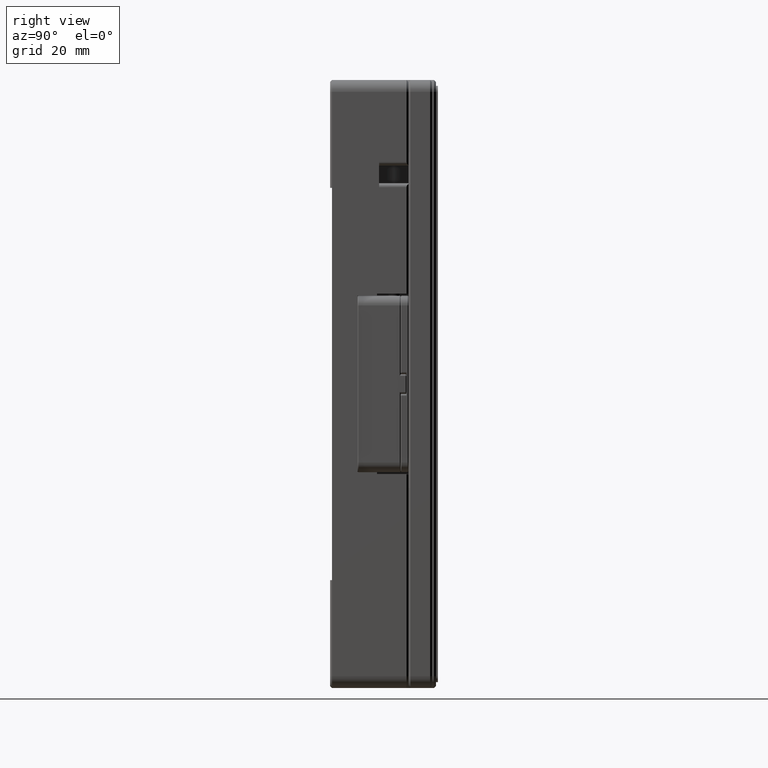
[diagram: clean part render]
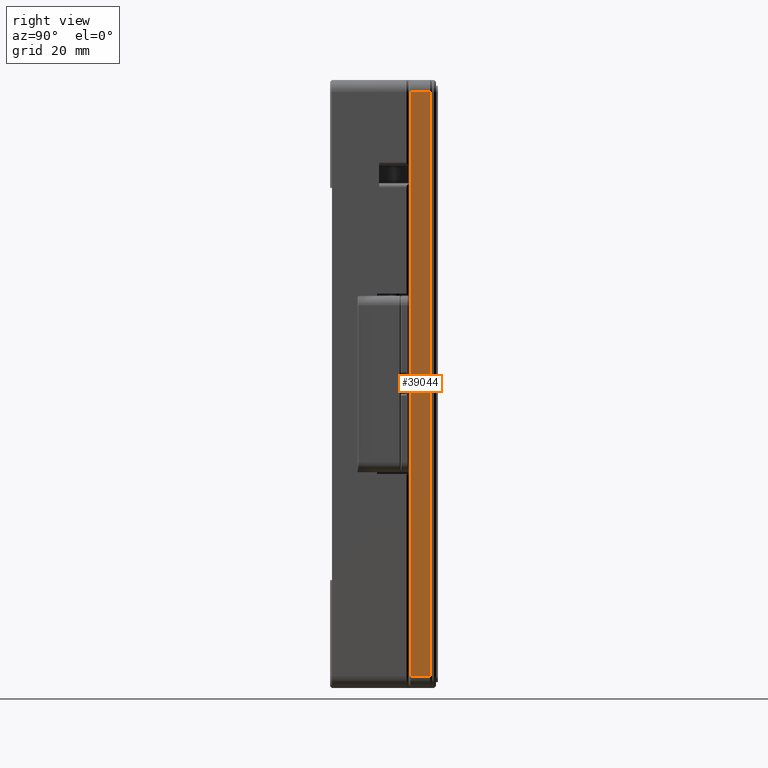
[diagram: same view with one face highlighted and labeled with its STEP entity id]
A machine part, right view. The second image highlights one B-rep face of the part: STEP entity #39044.
In plain terms, the highlighted planar face has unit normal (1, 0, 0).
Its self-contained STEP definition (entity closure, byte-faithful):
#1015 = ORIENTED_EDGE ( 'NONE', *, *, #35171, .F. ) ;
#2180 = CARTESIAN_POINT ( 'NONE',  ( 50.00000294521200317, 5.500002945454999903, -74.50000000010000178 ) ) ;
#2186 = CARTESIAN_POINT ( 'NONE',  ( 50.00000294112700061, 5.500002949539999797, 74.49999999719000243 ) ) ;
#4210 = CARTESIAN_POINT ( 'NONE',  ( 49.99999999991999999, 0.4999999999202000001, -74.50000000010000178 ) ) ;
#4958 = CARTESIAN_POINT ( 'NONE',  ( 50.00000000000000000, 0.5000000000000000000, -74.50000000000000000 ) ) ;
#5745 = VERTEX_POINT ( 'NONE', #4958 ) ;
#7496 = ORIENTED_EDGE ( 'NONE', *, *, #34927, .F. ) ;
#7875 = LINE ( 'NONE', #28830, #39367 ) ;
#11508 = ORIENTED_EDGE ( 'NONE', *, *, #13756, .F. ) ;
#12988 = LINE ( 'NONE', #2186, #24501 ) ;
#13756 = EDGE_CURVE ( 'NONE', #39932, #5745, #30710, .T. ) ;
#14693 = PLANE ( 'NONE',  #43096 ) ;
#15262 = ORIENTED_EDGE ( 'NONE', *, *, #20100, .T. ) ;
#18485 = CARTESIAN_POINT ( 'NONE',  ( 50.00000000000000000, 0.5000000000000000000, 74.50000000000000000 ) ) ;
#18894 = CARTESIAN_POINT ( 'NONE',  ( 50.00000000000000000, 5.499972699975000268, -74.50000000000000000 ) ) ;
#18928 = LINE ( 'NONE', #4210, #43624 ) ;
#20100 = EDGE_CURVE ( 'NONE', #40087, #37037, #7875, .T. ) ;
#24501 = VECTOR ( 'NONE', #30028, 1000.000000000000000 ) ;
#24922 = DIRECTION ( 'NONE',  ( -5.891092507507147049E-07, -0.9999999999998264721, 0.000000000000000000 ) ) ;
#25625 = DIRECTION ( 'NONE',  ( -2.913621022354000161E-11, -2.913620463517000270E-11, 1.000000000000000000 ) ) ;
#28830 = CARTESIAN_POINT ( 'NONE',  ( 50.00000294112700061, 5.500002949539999797, 74.49999999719000243 ) ) ;
#30028 = DIRECTION ( 'NONE',  ( 2.741471777454999685E-11, -2.741463432153999837E-11, -1.000000000000000000 ) ) ;
#30710 = LINE ( 'NONE', #2180, #38038 ) ;
#31738 = CARTESIAN_POINT ( 'NONE',  ( 50.00000000000000000, 0.000000000000000000, 77.50000000000000000 ) ) ;
#32426 = DIRECTION ( 'NONE',  ( 1.000000000000000000, 0.000000000000000000, 0.000000000000000000 ) ) ;
#34927 = EDGE_CURVE ( 'NONE', #40087, #39932, #12988, .T. ) ;
#35171 = EDGE_CURVE ( 'NONE', #5745, #37037, #18928, .T. ) ;
#35617 = CARTESIAN_POINT ( 'NONE',  ( 50.00000000000000000, 5.499972699975000268, 74.50000000000000000 ) ) ;
#37037 = VERTEX_POINT ( 'NONE', #18485 ) ;
#38038 = VECTOR ( 'NONE', #44032, 1000.000000000000114 ) ;
#38834 = DIRECTION ( 'NONE',  ( 0.000000000000000000, 1.000000000000000000, 0.000000000000000000 ) ) ;
#39044 = ADVANCED_FACE ( 'NONE', ( #42518 ), #14693, .T. ) ;
#39367 = VECTOR ( 'NONE', #24922, 1000.000000000000114 ) ;
#39932 = VERTEX_POINT ( 'NONE', #18894 ) ;
#40087 = VERTEX_POINT ( 'NONE', #35617 ) ;
#42518 = FACE_OUTER_BOUND ( 'NONE', #44717, .T. ) ;
#43096 = AXIS2_PLACEMENT_3D ( 'NONE', #31738, #32426, #38834 ) ;
#43624 = VECTOR ( 'NONE', #25625, 1000.000000000000000 ) ;
#44032 = DIRECTION ( 'NONE',  ( -5.890579512988156882E-07, -0.9999999999998264721, 0.000000000000000000 ) ) ;
#44717 = EDGE_LOOP ( 'NONE', ( #11508, #7496, #15262, #1015 ) ) ;